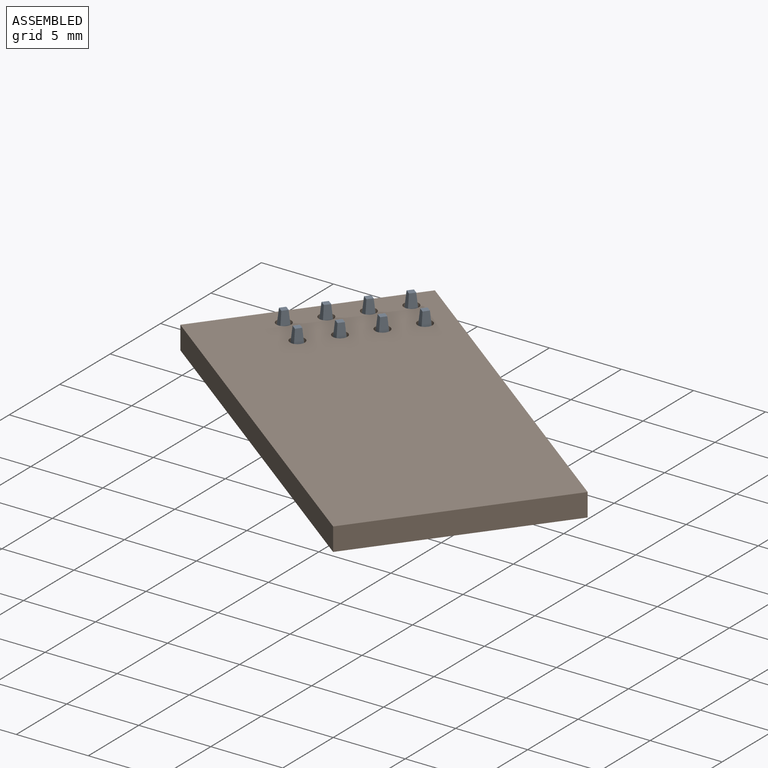
[diagram: assembled view]
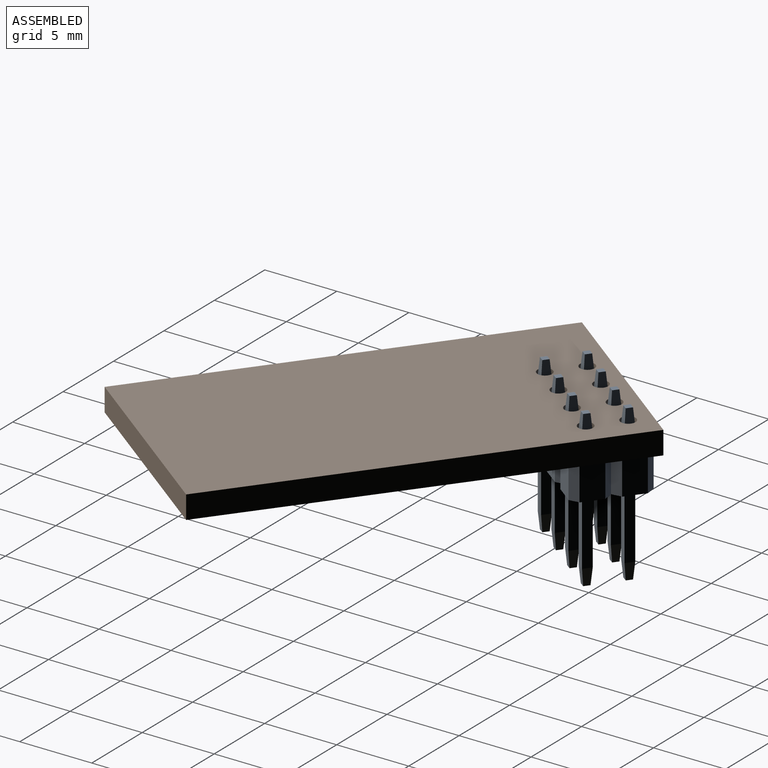
[diagram: assembled view, second angle]
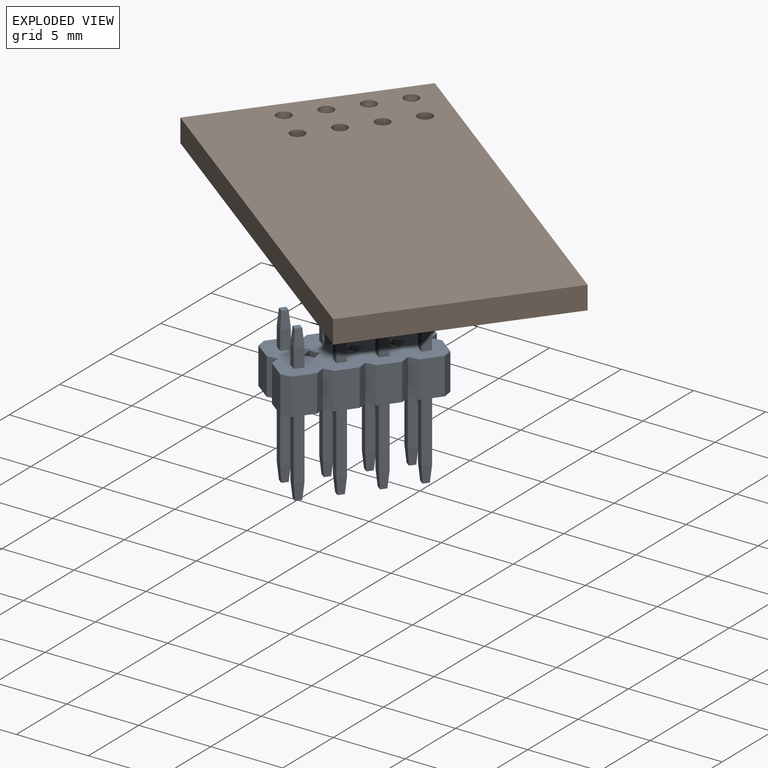
[diagram: exploded view]
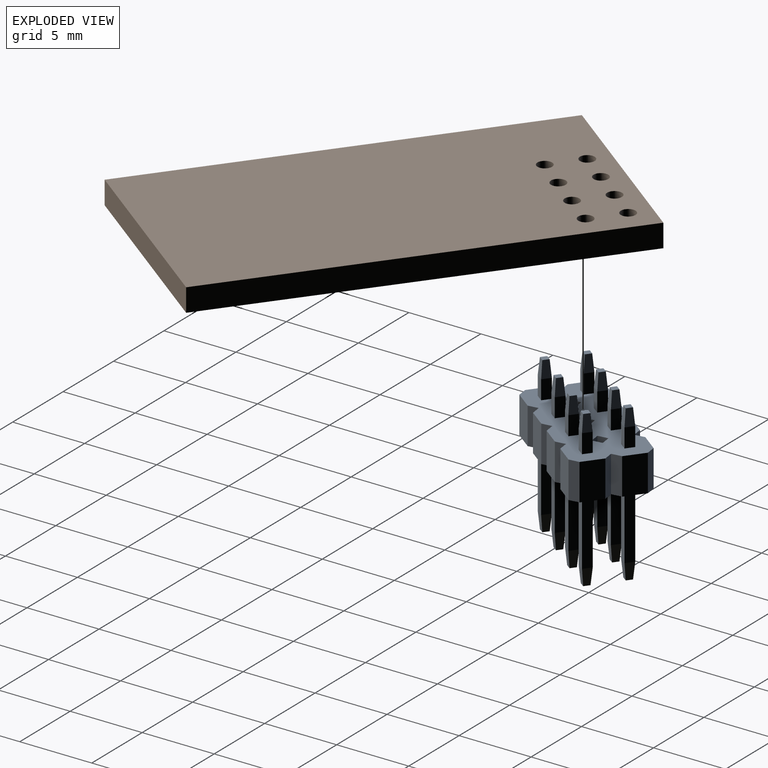
[diagram: exploded view, second angle]
ASSEMBLY  parts=2 mates=3
PART A: 190 faces, bbox 5.1x10.2x10.8 mm
  f0: plane 1.32x0.64mm, normal (-1,0,0), area 0.8mm2, adj f1,f3,f5,f9
  f1: plane 1.32x0.64mm, normal (0,-1,0), area 0.8mm2, adj f0,f2,f7,f9
  f2: plane 1.32x0.64mm, normal (1,0,0), area 0.8mm2, adj f1,f3,f8,f9
  f3: plane 1.32x0.64mm, normal (0,1,0), area 0.8mm2, adj f0,f2,f6,f9
  f4: plane 0.44x0.44mm, normal (0,0,-1), area 0.2mm2, adj f5,f6,f7,f8
  f5: plane 1.14x0.64mm, normal (-1,0,-0.09), area 0.6mm2, adj f0,f4,f6,f7
  f6: plane 1.14x0.64mm, normal (0,1,-0.09), area 0.6mm2, adj f3,f4,f5,f8
  f7: plane 1.14x0.64mm, normal (0,-1,-0.09), area 0.6mm2, adj f1,f4,f5,f8
  f8: plane 1.14x0.64mm, normal (1,0,-0.09), area 0.6mm2, adj f2,f4,f6,f7
  f9: plane 10.16x5.08mm, normal (0,0,-1), area 44.3mm2, adj f0,f1,f2,f3,f11,f12,f22,f23
  f10: plane 10.16x5.08mm, normal (0,0,1), area 44.3mm2, adj f11,f12,f18,f19,f20,f21,f22,f23
  f11: plane 2.54x1.54mm, normal (1,0,0), area 3.9mm2, adj f9,f10,f22,f23
  f12: plane 2.54x1.54mm, normal (0,1,0), area 3.9mm2, adj f9,f10,f22,f24
  f13: plane 0.44x0.44mm, normal (0,0,1), area 0.2mm2, adj f14,f15,f16,f17
  f14: plane 1.14x0.64mm, normal (-1,0,0.09), area 0.6mm2, adj f13,f15,f17,f21
  f15: plane 1.14x0.64mm, normal (0,-1,0.09), area 0.6mm2, adj f13,f14,f16,f20
  f16: plane 1.14x0.64mm, normal (1,0,0.09), area 0.6mm2, adj f13,f15,f17,f19
  f17: plane 1.14x0.64mm, normal (0,1,0.09), area 0.6mm2, adj f13,f14,f16,f18
  f18: plane 4.66x0.64mm, normal (0,1,0), area 3mm2, adj f10,f17,f19,f21
  f19: plane 4.66x0.64mm, normal (1,0,0), area 3mm2, adj f10,f16,f18,f20
  f20: plane 4.66x0.64mm, normal (0,-1,0), area 3mm2, adj f10,f15,f19,f21
  f21: plane 4.66x0.64mm, normal (-1,0,0), area 3mm2, adj f10,f14,f18,f20
  f22: plane 2.54x0.5mm, normal (0.71,0.71,0), area 1.8mm2, adj f9,f10,f11,f12
  f23: plane 2.54x0.5mm, normal (0.71,-0.71,0), area 1.8mm2, adj f9,f10,f11,f45
  f24: plane 2.54x0.5mm, normal (-0.71,0.71,0), area 1.8mm2, adj f9,f10,f12,f116
  f25: plane 2.54x0.5mm, normal (-0.71,-0.71,0), area 1.8mm2, adj f9,f10,f47,f117
  f26: plane 1.32x0.64mm, normal (-1,0,0), area 0.8mm2, adj f9,f27,f29,f31
  f27: plane 1.32x0.64mm, normal (0,-1,0), area 0.8mm2, adj f9,f26,f28,f33
  f28: plane 1.32x0.64mm, normal (1,0,0), area 0.8mm2, adj f9,f27,f29,f34
  f29: plane 1.32x0.64mm, normal (0,1,0), area 0.8mm2, adj f9,f26,f28,f32
  f30: plane 0.44x0.44mm, normal (0,0,-1), area 0.2mm2, adj f31,f32,f33,f34
  f31: plane 1.14x0.64mm, normal (-1,0,-0.09), area 0.6mm2, adj f26,f30,f32,f33
  f32: plane 1.14x0.64mm, normal (0,1,-0.09), area 0.6mm2, adj f29,f30,f31,f34
  f33: plane 1.14x0.64mm, normal (0,-1,-0.09), area 0.6mm2, adj f27,f30,f31,f34
  f34: plane 1.14x0.64mm, normal (1,0,-0.09), area 0.6mm2, adj f28,f30,f32,f33
  f35: plane 2.54x1.54mm, normal (1,0,0), area 3.9mm2, adj f9,f10,f45,f46
  f36: plane 0.44x0.44mm, normal (0,0,1), area 0.2mm2, adj f37,f38,f39,f40
  f37: plane 1.14x0.64mm, normal (-1,0,0.09), area 0.6mm2, adj f36,f38,f40,f44
  f38: plane 1.14x0.64mm, normal (0,-1,0.09), area 0.6mm2, adj f36,f37,f39,f43
  f39: plane 1.14x0.64mm, normal (1,0,0.09), area 0.6mm2, adj f36,f38,f40,f42
  f40: plane 1.14x0.64mm, normal (0,1,0.09), area 0.6mm2, adj f36,f37,f39,f41
  f41: plane 4.66x0.64mm, normal (0,1,0), area 3mm2, adj f10,f40,f42,f44
  f42: plane 4.66x0.64mm, normal (1,0,0), area 3mm2, adj f10,f39,f41,f43
  f43: plane 4.66x0.64mm, normal (0,-1,0), area 3mm2, adj f10,f38,f42,f44
  f44: plane 4.66x0.64mm, normal (-1,0,0), area 3mm2, adj f10,f37,f41,f43
  f45: plane 2.54x0.5mm, normal (0.71,0.71,0), area 1.8mm2, adj f9,f10,f23,f35
  f46: plane 2.54x0.5mm, normal (0.71,-0.71,0), area 1.8mm2, adj f9,f10,f35,f68
  f47: plane 2.54x0.5mm, normal (-0.71,0.71,0), area 1.8mm2, adj f9,f10,f25,f139
  f48: plane 2.54x0.5mm, normal (-0.71,-0.71,0), area 1.8mm2, adj f9,f10,f70,f140
  f49: plane 1.32x0.64mm, normal (-1,0,0), area 0.8mm2, adj f9,f50,f52,f54
  f50: plane 1.32x0.64mm, normal (0,-1,0), area 0.8mm2, adj f9,f49,f51,f56
  f51: plane 1.32x0.64mm, normal (1,0,0), area 0.8mm2, adj f9,f50,f52,f57
  f52: plane 1.32x0.64mm, normal (0,1,0), area 0.8mm2, adj f9,f49,f51,f55
  f53: plane 0.44x0.44mm, normal (0,0,-1), area 0.2mm2, adj f54,f55,f56,f57
  f54: plane 1.14x0.64mm, normal (-1,0,-0.09), area 0.6mm2, adj f49,f53,f55,f56
  f55: plane 1.14x0.64mm, normal (0,1,-0.09), area 0.6mm2, adj f52,f53,f54,f57
  f56: plane 1.14x0.64mm, normal (0,-1,-0.09), area 0.6mm2, adj f50,f53,f54,f57
  f57: plane 1.14x0.64mm, normal (1,0,-0.09), area 0.6mm2, adj f51,f53,f55,f56
  f58: plane 2.54x1.54mm, normal (1,0,0), area 3.9mm2, adj f9,f10,f68,f69
  f59: plane 0.44x0.44mm, normal (0,0,1), area 0.2mm2, adj f60,f61,f62,f63
  f60: plane 1.14x0.64mm, normal (-1,0,0.09), area 0.6mm2, adj f59,f61,f63,f67
  f61: plane 1.14x0.64mm, normal (0,-1,0.09), area 0.6mm2, adj f59,f60,f62,f66
  f62: plane 1.14x0.64mm, normal (1,0,0.09), area 0.6mm2, adj f59,f61,f63,f65
  f63: plane 1.14x0.64mm, normal (0,1,0.09), area 0.6mm2, adj f59,f60,f62,f64
  f64: plane 4.66x0.64mm, normal (0,1,0), area 3mm2, adj f10,f63,f65,f67
  f65: plane 4.66x0.64mm, normal (1,0,0), area 3mm2, adj f10,f62,f64,f66
  f66: plane 4.66x0.64mm, normal (0,-1,0), area 3mm2, adj f10,f61,f65,f67
  f67: plane 4.66x0.64mm, normal (-1,0,0), area 3mm2, adj f10,f60,f64,f66
  f68: plane 2.54x0.5mm, normal (0.71,0.71,0), area 1.8mm2, adj f9,f10,f46,f58
  f69: plane 2.54x0.5mm, normal (0.71,-0.71,0), area 1.8mm2, adj f9,f10,f58,f92
  f70: plane 2.54x0.5mm, normal (-0.71,0.71,0), area 1.8mm2, adj f9,f10,f48,f162
  f71: plane 2.54x0.5mm, normal (-0.71,-0.71,0), area 1.8mm2, adj f9,f10,f94,f163
  f72: plane 1.32x0.64mm, normal (-1,0,0), area 0.8mm2, adj f9,f73,f75,f77
  f73: plane 1.32x0.64mm, normal (0,-1,0), area 0.8mm2, adj f9,f72,f74,f79
  f74: plane 1.32x0.64mm, normal (1,0,0), area 0.8mm2, adj f9,f73,f75,f80
  f75: plane 1.32x0.64mm, normal (0,1,0), area 0.8mm2, adj f9,f72,f74,f78
  f76: plane 0.44x0.44mm, normal (0,0,-1), area 0.2mm2, adj f77,f78,f79,f80
  f77: plane 1.14x0.64mm, normal (-1,0,-0.09), area 0.6mm2, adj f72,f76,f78,f79
  f78: plane 1.14x0.64mm, normal (0,1,-0.09), area 0.6mm2, adj f75,f76,f77,f80
  f79: plane 1.14x0.64mm, normal (0,-1,-0.09), area 0.6mm2, adj f73,f76,f77,f80
  f80: plane 1.14x0.64mm, normal (1,0,-0.09), area 0.6mm2, adj f74,f76,f78,f79
  f81: plane 2.54x1.54mm, normal (1,0,0), area 3.9mm2, adj f9,f10,f92,f93
  f82: plane 2.54x1.54mm, normal (0,-1,0), area 3.9mm2, adj f9,f10,f93,f95
  f83: plane 0.44x0.44mm, normal (0,0,1), area 0.2mm2, adj f84,f85,f86,f87
  f84: plane 1.14x0.64mm, normal (-1,0,0.09), area 0.6mm2, adj f83,f85,f87,f91
  f85: plane 1.14x0.64mm, normal (0,-1,0.09), area 0.6mm2, adj f83,f84,f86,f90
  f86: plane 1.14x0.64mm, normal (1,0,0.09), area 0.6mm2, adj f83,f85,f87,f89
  f87: plane 1.14x0.64mm, normal (0,1,0.09), area 0.6mm2, adj f83,f84,f86,f88
  f88: plane 4.66x0.64mm, normal (0,1,0), area 3mm2, adj f10,f87,f89,f91
  f89: plane 4.66x0.64mm, normal (1,0,0), area 3mm2, adj f10,f86,f88,f90
  f90: plane 4.66x0.64mm, normal (0,-1,0), area 3mm2, adj f10,f85,f89,f91
  f91: plane 4.66x0.64mm, normal (-1,0,0), area 3mm2, adj f10,f84,f88,f90
  f92: plane 2.54x0.5mm, normal (0.71,0.71,0), area 1.8mm2, adj f9,f10,f69,f81
  f93: plane 2.54x0.5mm, normal (0.71,-0.71,0), area 1.8mm2, adj f9,f10,f81,f82
  f94: plane 2.54x0.5mm, normal (-0.71,0.71,0), area 1.8mm2, adj f9,f10,f71,f186
  f95: plane 2.54x0.5mm, normal (-0.71,-0.71,0), area 1.8mm2, adj f9,f10,f82,f187
  f96: plane 1.32x0.64mm, normal (-1,0,0), area 0.8mm2, adj f9,f97,f99,f101
  f97: plane 1.32x0.64mm, normal (0,-1,0), area 0.8mm2, adj f9,f96,f98,f103
  f98: plane 1.32x0.64mm, normal (1,0,0), area 0.8mm2, adj f9,f97,f99,f104
  f99: plane 1.32x0.64mm, normal (0,1,0), area 0.8mm2, adj f9,f96,f98,f102
  f100: plane 0.44x0.44mm, normal (0,0,-1), area 0.2mm2, adj f101,f102,f103,f104
  f101: plane 1.14x0.64mm, normal (-1,0,-0.09), area 0.6mm2, adj f96,f100,f102,f103
  f102: plane 1.14x0.64mm, normal (0,1,-0.09), area 0.6mm2, adj f99,f100,f101,f104
  f103: plane 1.14x0.64mm, normal (0,-1,-0.09), area 0.6mm2, adj f97,f100,f101,f104
  f104: plane 1.14x0.64mm, normal (1,0,-0.09), area 0.6mm2, adj f98,f100,f102,f103
  f105: plane 2.54x1.54mm, normal (0,1,0), area 3.9mm2, adj f9,f10,f116,f118
  f106: plane 2.54x1.54mm, normal (-1,0,0), area 3.9mm2, adj f9,f10,f118,f119
  f107: plane 0.44x0.44mm, normal (0,0,1), area 0.2mm2, adj f108,f109,f110,f111
  f108: plane 1.14x0.64mm, normal (-1,0,0.09), area 0.6mm2, adj f107,f109,f111,f115
  f109: plane 1.14x0.64mm, normal (0,-1,0.09), area 0.6mm2, adj f107,f108,f110,f114
  f110: plane 1.14x0.64mm, normal (1,0,0.09), area 0.6mm2, adj f107,f109,f111,f113
  f111: plane 1.14x0.64mm, normal (0,1,0.09), area 0.6mm2, adj f107,f108,f110,f112
  f112: plane 4.66x0.64mm, normal (0,1,0), area 3mm2, adj f10,f111,f113,f115
  f113: plane 4.66x0.64mm, normal (1,0,0), area 3mm2, adj f10,f110,f112,f114
  f114: plane 4.66x0.64mm, normal (0,-1,0), area 3mm2, adj f10,f109,f113,f115
  f115: plane 4.66x0.64mm, normal (-1,0,0), area 3mm2, adj f10,f108,f112,f114
  f116: plane 2.54x0.5mm, normal (0.71,0.71,0), area 1.8mm2, adj f9,f10,f24,f105
  f117: plane 2.54x0.5mm, normal (0.71,-0.71,0), area 1.8mm2, adj f9,f10,f25,f139
  f118: plane 2.54x0.5mm, normal (-0.71,0.71,0), area 1.8mm2, adj f9,f10,f105,f106
  f119: plane 2.54x0.5mm, normal (-0.71,-0.71,0), area 1.8mm2, adj f9,f10,f106,f141
  f120: plane 1.32x0.64mm, normal (-1,0,0), area 0.8mm2, adj f9,f121,f123,f125
  f121: plane 1.32x0.64mm, normal (0,-1,0), area 0.8mm2, adj f9,f120,f122,f127
  f122: plane 1.32x0.64mm, normal (1,0,0), area 0.8mm2, adj f9,f121,f123,f128
  f123: plane 1.32x0.64mm, normal (0,1,0), area 0.8mm2, adj f9,f120,f122,f126
  f124: plane 0.44x0.44mm, normal (0,0,-1), area 0.2mm2, adj f125,f126,f127,f128
  f125: plane 1.14x0.64mm, normal (-1,0,-0.09), area 0.6mm2, adj f120,f124,f126,f127
  f126: plane 1.14x0.64mm, normal (0,1,-0.09), area 0.6mm2, adj f123,f124,f125,f128
  f127: plane 1.14x0.64mm, normal (0,-1,-0.09), area 0.6mm2, adj f121,f124,f125,f128
  f128: plane 1.14x0.64mm, normal (1,0,-0.09), area 0.6mm2, adj f122,f124,f126,f127
  f129: plane 2.54x1.54mm, normal (-1,0,0), area 3.9mm2, adj f9,f10,f141,f142
  f130: plane 0.44x0.44mm, normal (0,0,1), area 0.2mm2, adj f131,f132,f133,f134
  f131: plane 1.14x0.64mm, normal (-1,0,0.09), area 0.6mm2, adj f130,f132,f134,f138
  f132: plane 1.14x0.64mm, normal (0,-1,0.09), area 0.6mm2, adj f130,f131,f133,f137
  f133: plane 1.14x0.64mm, normal (1,0,0.09), area 0.6mm2, adj f130,f132,f134,f136
  f134: plane 1.14x0.64mm, normal (0,1,0.09), area 0.6mm2, adj f130,f131,f133,f135
  f135: plane 4.66x0.64mm, normal (0,1,0), area 3mm2, adj f10,f134,f136,f138
  f136: plane 4.66x0.64mm, normal (1,0,0), area 3mm2, adj f10,f133,f135,f137
  f137: plane 4.66x0.64mm, normal (0,-1,0), area 3mm2, adj f10,f132,f136,f138
  f138: plane 4.66x0.64mm, normal (-1,0,0), area 3mm2, adj f10,f131,f135,f137
  f139: plane 2.54x0.5mm, normal (0.71,0.71,0), area 1.8mm2, adj f9,f10,f47,f117
  f140: plane 2.54x0.5mm, normal (0.71,-0.71,0), area 1.8mm2, adj f9,f10,f48,f162
  f141: plane 2.54x0.5mm, normal (-0.71,0.71,0), area 1.8mm2, adj f9,f10,f119,f129
  f142: plane 2.54x0.5mm, normal (-0.71,-0.71,0), area 1.8mm2, adj f9,f10,f129,f164
  f143: plane 1.32x0.64mm, normal (-1,0,0), area 0.8mm2, adj f9,f144,f146,f148
  f144: plane 1.32x0.64mm, normal (0,-1,0), area 0.8mm2, adj f9,f143,f145,f150
  f145: plane 1.32x0.64mm, normal (1,0,0), area 0.8mm2, adj f9,f144,f146,f151
  f146: plane 1.32x0.64mm, normal (0,1,0), area 0.8mm2, adj f9,f143,f145,f149
  f147: plane 0.44x0.44mm, normal (0,0,-1), area 0.2mm2, adj f148,f149,f150,f151
  f148: plane 1.14x0.64mm, normal (-1,0,-0.09), area 0.6mm2, adj f143,f147,f149,f150
  f149: plane 1.14x0.64mm, normal (0,1,-0.09), area 0.6mm2, adj f146,f147,f148,f151
  f150: plane 1.14x0.64mm, normal (0,-1,-0.09), area 0.6mm2, adj f144,f147,f148,f151
  f151: plane 1.14x0.64mm, normal (1,0,-0.09), area 0.6mm2, adj f145,f147,f149,f150
  f152: plane 2.54x1.54mm, normal (-1,0,0), area 3.9mm2, adj f9,f10,f164,f165
  f153: plane 0.44x0.44mm, normal (0,0,1), area 0.2mm2, adj f154,f155,f156,f157
  f154: plane 1.14x0.64mm, normal (-1,0,0.09), area 0.6mm2, adj f153,f155,f157,f161
  f155: plane 1.14x0.64mm, normal (0,-1,0.09), area 0.6mm2, adj f153,f154,f156,f160
  f156: plane 1.14x0.64mm, normal (1,0,0.09), area 0.6mm2, adj f153,f155,f157,f159
  f157: plane 1.14x0.64mm, normal (0,1,0.09), area 0.6mm2, adj f153,f154,f156,f158
  f158: plane 4.66x0.64mm, normal (0,1,0), area 3mm2, adj f10,f157,f159,f161
  f159: plane 4.66x0.64mm, normal (1,0,0), area 3mm2, adj f10,f156,f158,f160
  f160: plane 4.66x0.64mm, normal (0,-1,0), area 3mm2, adj f10,f155,f159,f161
  f161: plane 4.66x0.64mm, normal (-1,0,0), area 3mm2, adj f10,f154,f158,f160
  f162: plane 2.54x0.5mm, normal (0.71,0.71,0), area 1.8mm2, adj f9,f10,f70,f140
  f163: plane 2.54x0.5mm, normal (0.71,-0.71,0), area 1.8mm2, adj f9,f10,f71,f186
  f164: plane 2.54x0.5mm, normal (-0.71,0.71,0), area 1.8mm2, adj f9,f10,f142,f152
  f165: plane 2.54x0.5mm, normal (-0.71,-0.71,0), area 1.8mm2, adj f9,f10,f152,f188
  f166: plane 1.32x0.64mm, normal (-1,0,0), area 0.8mm2, adj f9,f167,f169,f171
  f167: plane 1.32x0.64mm, normal (0,-1,0), area 0.8mm2, adj f9,f166,f168,f173
  f168: plane 1.32x0.64mm, normal (1,0,0), area 0.8mm2, adj f9,f167,f169,f174
  f169: plane 1.32x0.64mm, normal (0,1,0), area 0.8mm2, adj f9,f166,f168,f172
  f170: plane 0.44x0.44mm, normal (0,0,-1), area 0.2mm2, adj f171,f172,f173,f174
  f171: plane 1.14x0.64mm, normal (-1,0,-0.09), area 0.6mm2, adj f166,f170,f172,f173
  f172: plane 1.14x0.64mm, normal (0,1,-0.09), area 0.6mm2, adj f169,f170,f171,f174
  f173: plane 1.14x0.64mm, normal (0,-1,-0.09), area 0.6mm2, adj f167,f170,f171,f174
  f174: plane 1.14x0.64mm, normal (1,0,-0.09), area 0.6mm2, adj f168,f170,f172,f173
  f175: plane 2.54x1.54mm, normal (-1,0,0), area 3.9mm2, adj f9,f10,f188,f189
  f176: plane 2.54x1.54mm, normal (0,-1,0), area 3.9mm2, adj f9,f10,f187,f189
  f177: plane 0.44x0.44mm, normal (0,0,1), area 0.2mm2, adj f178,f179,f180,f181
  f178: plane 1.14x0.64mm, normal (-1,0,0.09), area 0.6mm2, adj f177,f179,f181,f185
  f179: plane 1.14x0.64mm, normal (0,-1,0.09), area 0.6mm2, adj f177,f178,f180,f184
  f180: plane 1.14x0.64mm, normal (1,0,0.09), area 0.6mm2, adj f177,f179,f181,f183
  f181: plane 1.14x0.64mm, normal (0,1,0.09), area 0.6mm2, adj f177,f178,f180,f182
  f182: plane 4.66x0.64mm, normal (0,1,0), area 3mm2, adj f10,f181,f183,f185
  f183: plane 4.66x0.64mm, normal (1,0,0), area 3mm2, adj f10,f180,f182,f184
  f184: plane 4.66x0.64mm, normal (0,-1,0), area 3mm2, adj f10,f179,f183,f185
  f185: plane 4.66x0.64mm, normal (-1,0,0), area 3mm2, adj f10,f178,f182,f184
  f186: plane 2.54x0.5mm, normal (0.71,0.71,0), area 1.8mm2, adj f9,f10,f94,f163
  f187: plane 2.54x0.5mm, normal (0.71,-0.71,0), area 1.8mm2, adj f9,f10,f95,f176
  f188: plane 2.54x0.5mm, normal (-0.71,0.71,0), area 1.8mm2, adj f9,f10,f165,f175
  f189: plane 2.54x0.5mm, normal (-0.71,-0.71,0), area 1.8mm2, adj f9,f10,f175,f176
PART B: 14 faces, bbox 28.5x15.2x1.6 mm
  f0: plane 15.2x1.6mm, normal (-1,0,0), area 24.3mm2, adj f1,f3,f4,f5
  f1: plane 28.5x1.6mm, normal (0,-1,0), area 45.6mm2, adj f0,f2,f4,f5
  f2: plane 15.2x1.6mm, normal (1,0,0), area 24.3mm2, adj f1,f3,f4,f5
  f3: plane 28.5x1.6mm, normal (0,1,0), area 45.6mm2, adj f0,f2,f4,f5
  f4: plane 28.5x15.2mm, normal (0,0,1), area 426.7mm2, adj f0,f1,f2,f3,f6,f7,f8,f9
  f5: plane 28.5x15.2mm, normal (0,0,-1), area 426.7mm2, adj f0,f1,f2,f3,f6,f7,f8,f9
  f6: cylinder r=0.51mm len=1.6mm, axis (0,0,1), area 5.1mm2, adj f4,f5
  f7: cylinder r=0.51mm len=1.6mm, axis (0,0,1), area 5.1mm2, adj f4,f5
  f8: cylinder r=0.51mm len=1.6mm, axis (0,0,1), area 5.1mm2, adj f4,f5
  f9: cylinder r=0.51mm len=1.6mm, axis (0,0,1), area 5.1mm2, adj f4,f5
  f10: cylinder r=0.51mm len=1.6mm, axis (0,0,1), area 5.1mm2, adj f4,f5
  f11: cylinder r=0.51mm len=1.6mm, axis (0,0,1), area 5.1mm2, adj f4,f5
  f12: cylinder r=0.51mm len=1.6mm, axis (0,0,1), area 5.1mm2, adj f4,f5
  f13: cylinder r=0.51mm len=1.6mm, axis (0,0,1), area 5.1mm2, adj f4,f5
PLACE A rot(axis=(0.32,0.95,0),180deg) t=(-1.67,1.57,2.46)mm
PLACE B rot(axis=(0,0,1),142.8deg) t=(-1.73,3.97,0)mm
MATE planar A.f9 <-> B.f5  axis (0,0,-1) through (-1.83,0.09,0)mm
MATE cylindrical A.f170 <-> B.f7  axis (0,0,-1) through (-4.26,-6.04,2.46)mm
MATE cylindrical A.f4 <-> B.f12  axis (0,0,-1) through (-1.67,1.57,2.46)mm
